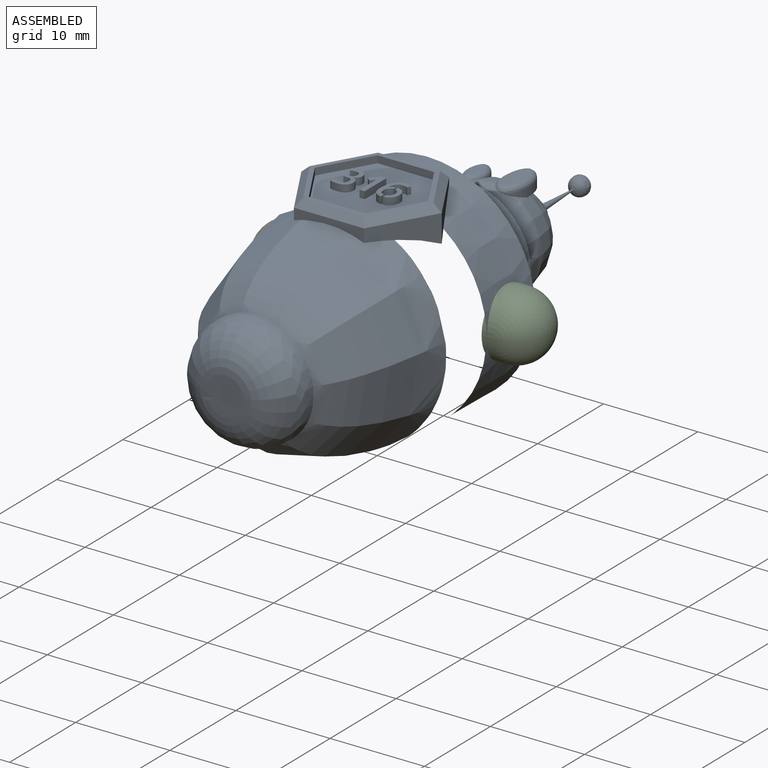
[diagram: assembled view]
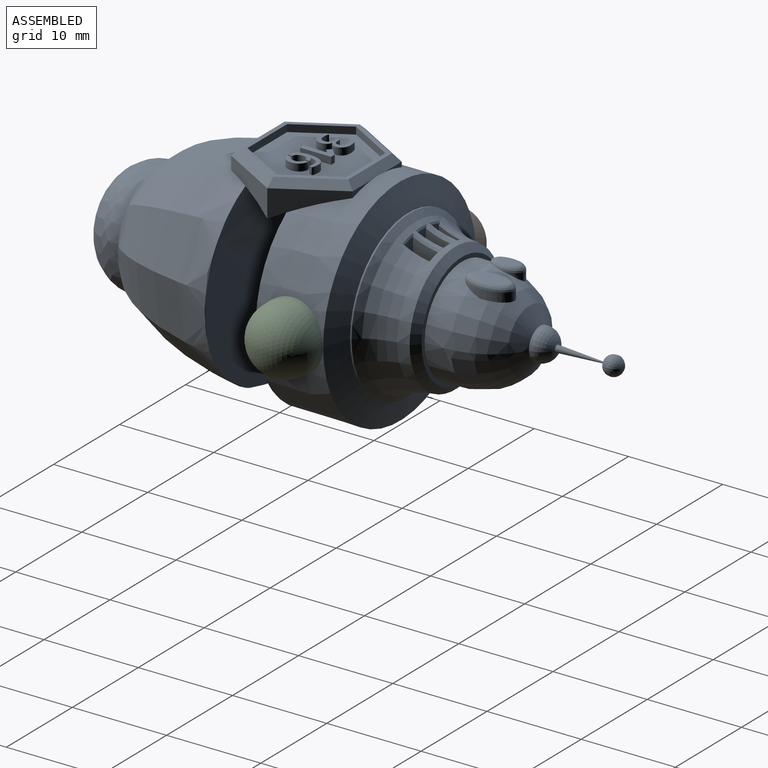
[diagram: assembled view, second angle]
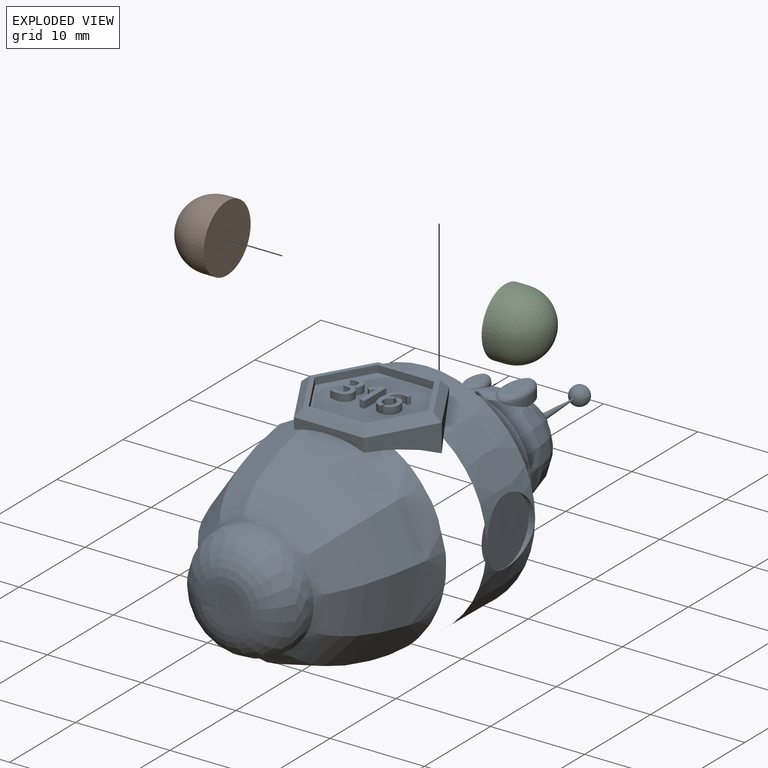
[diagram: exploded view]
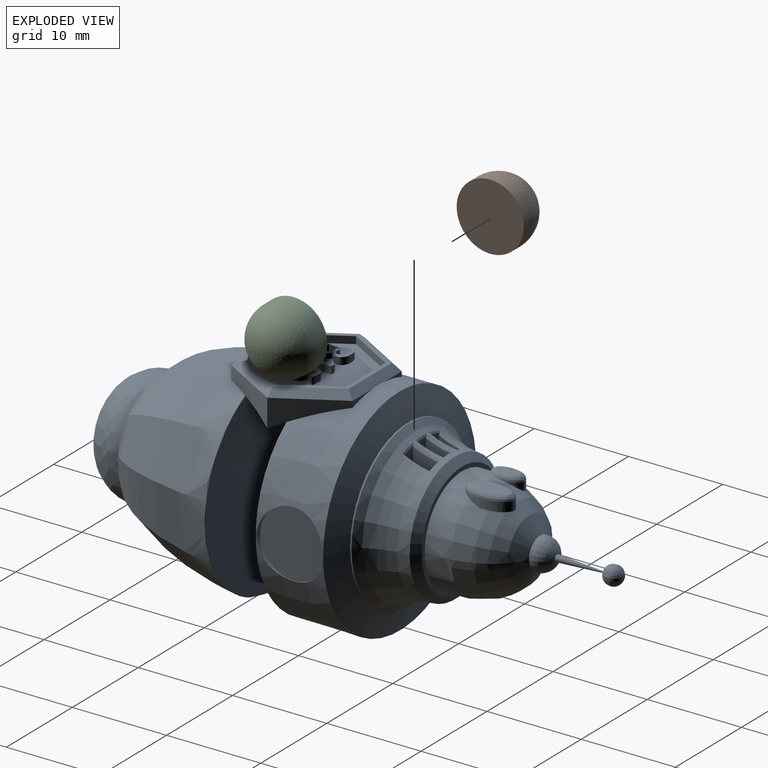
[diagram: exploded view, second angle]
ASSEMBLY  parts=3 mates=2
PART A: 176 faces, bbox 23.7x54.9x24.4 mm
  f0: plane 2.65x0.53mm, normal (0,1,0), area 0.6mm2, adj f10,f42,f53
  f1: plane 13.13x11.37mm, normal (0,0,1), area 18mm2, adj f45,f46,f47,f48,f49,f50,f52,f53
  f2: revolved ~11.28x11.28mm, area 267.2mm2, adj f5,f6,f14,f16,f17,f19,f21,f23
  f3: revolved ~2x2mm, area 12.6mm2, adj f4
  f4: cone r=0.36mm half-angle=3.2deg, axis (-0.01,-1,0), area 7mm2, adj f3,f5
  f5: revolved ~3.42x3.42mm, area 19.7mm2, adj f2,f4
  f6: cone r=6.82mm half-angle=89.6deg, axis (-0.01,-1,0), area 16.1mm2, adj f2,f175
  f7: revolved ~17.54x17.54mm, area 236mm2, adj f8,f159,f160,f161,f162,f163,f164,f165
  f8: cone r=8.77mm half-angle=0.4deg, axis (0.01,1,0), area 9.3mm2, adj f7,f9
  f9: cone r=11.48mm half-angle=71deg, axis (-0.01,-1,0), area 182.4mm2, adj f8,f10
  f10: cone r=11.43mm half-angle=0.4deg, axis (0.01,1,0), area 386.5mm2, adj f0,f9,f11,f12,f42,f43,f44,f53
  f11: revolved ~22.77x22.77mm, area 2259.7mm2, adj f10,f12,f13,f39,f40,f41,f43
  f12: revolved ~1.54x0.88mm, area 0.8mm2, adj f10,f11,f42
  f13: revolved ~12.29x12.29mm, area 219.2mm2, adj f11
  f14: extruded ~3.56x2.07mm, area 4mm2, adj f2,f16,f22
  f15: plane 2.46x0.97mm, normal (0,0,1), area 1.8mm2, adj f22,f23
  f16: plane 1.28x1.02mm, normal (0,0,-1), area 0.1mm2, adj f2,f14
  f17: extruded ~5.02x2.68mm, area 6.9mm2, adj f2,f19,f20
  f18: plane 3.96x1.59mm, normal (0,0,1), area 4.8mm2, adj f20,f21
  f19: plane 3.49x3.02mm, normal (0,0,-1), area 2.4mm2, adj f2,f17
  f20: bspline ~5.01x2.69mm, area 7.4mm2, adj f17,f18,f21
  f21: bspline ~2.37x1.81mm, area 1.8mm2, adj f2,f18,f20
  f22: bspline ~3.57x2.08mm, area 4.9mm2, adj f14,f15,f23
  f23: bspline ~2.21x1.17mm, area 1.5mm2, adj f2,f15,f22
  f24: plane 2.94x2.66mm, normal (1,0,0), area 6.4mm2, adj f25,f27,f28,f159,f160
  f25: plane 3.02x1.36mm, normal (0,1,0), area 3.3mm2, adj f24,f26,f28,f160,f161,f162
  f26: plane 2.59x2.5mm, normal (-1,0,0), area 5.2mm2, adj f25,f27,f28,f161
  f27: plane 2.11x1.19mm, normal (0,-1,0), area 2.2mm2, adj f24,f26,f28,f159,f161
  f28: plane 2.59x1.13mm, normal (0,0,1), area 2.9mm2, adj f24,f25,f26,f27
  f29: plane 3.12x2.69mm, normal (1,0,0), area 6.6mm2, adj f30,f32,f33,f163
  f30: plane 3.16x1.37mm, normal (0,1,0), area 3.6mm2, adj f29,f31,f33,f163,f165,f166
  f31: plane 3.11x2.7mm, normal (-1,0,0), area 6.6mm2, adj f30,f32,f33,f166
  f32: plane 2.28x1.14mm, normal (0,-1,0), area 2.6mm2, adj f29,f31,f33,f164
  f33: plane 2.59x1.13mm, normal (0,0,1), area 2.9mm2, adj f29,f30,f31,f32
  f34: plane 2.59x2.56mm, normal (1,0,0), area 5.4mm2, adj f35,f37,f38,f170
  f35: plane 3.06x1.37mm, normal (0,1,0), area 3.3mm2, adj f34,f36,f38,f167,f169,f170
  f36: plane 2.97x2.65mm, normal (-1,0,0), area 6.5mm2, adj f35,f37,f38,f167,f168
  f37: plane 2.13x1.19mm, normal (0,-1,0), area 2.2mm2, adj f34,f36,f38,f168,f170
  f38: plane 2.59x1.13mm, normal (0,0,1), area 2.9mm2, adj f34,f35,f36,f37
  f39: plane 6.8x4.07mm, normal (-0.87,-0.5,0), area 12.3mm2, adj f11,f40,f42,f54
  f40: plane 7.47x1.42mm, normal (0,-1,0), area 6.4mm2, adj f11,f39,f41,f56
  f41: plane 6.79x4.07mm, normal (0.87,-0.5,0), area 14.4mm2, adj f11,f40,f43,f57
  f42: plane 6.62x3.89mm, normal (-0.87,0.5,0), area 10.4mm2, adj f0,f10,f12,f39,f52
  f43: plane 6.65x3.92mm, normal (0.87,0.5,0), area 12.2mm2, adj f10,f11,f41,f44,f55
  f44: plane 3.01x0.65mm, normal (0,1,0), area 0.8mm2, adj f10,f43,f53
  f45: plane 5.21x3.01mm, normal (0.87,-0.5,0), area 4.6mm2, adj f1,f46,f50,f51
  f46: plane 5.21x3.01mm, normal (0.87,0.5,0), area 4.6mm2, adj f1,f45,f47,f51
  f47: plane 6.02x0.76mm, normal (0,1,0), area 4.6mm2, adj f1,f46,f48,f51
  f48: plane 5.21x3.01mm, normal (-0.87,0.5,0), area 4.6mm2, adj f1,f47,f49,f51
  f49: plane 5.21x3.01mm, normal (-0.87,-0.5,0), area 4.6mm2, adj f1,f48,f50,f51
  f50: plane 6.02x0.76mm, normal (0,-1,0), area 4.6mm2, adj f1,f45,f49,f51
  f51: plane 12.04x10.42mm, normal (0,0,1), area 85.6mm2, adj f45,f46,f47,f48,f49,f50,f58,f59
  f52: plane 6.45x4.16mm, normal (-0.61,0.35,0.71), area 7.6mm2, adj f1,f42,f53,f54
  f53: plane 7.51x0.83mm, normal (0,0.71,0.71), area 7.5mm2, adj f0,f1,f10,f44,f52,f55
  f54: plane 6.45x4.16mm, normal (-0.61,-0.35,0.71), area 7.6mm2, adj f1,f39,f52,f56
  f55: plane 6.45x4.16mm, normal (0.61,0.35,0.71), area 7.6mm2, adj f1,f43,f53,f57
  f56: plane 7.45x0.76mm, normal (0,-0.71,0.71), area 7.6mm2, adj f1,f40,f54,f57
  f57: plane 6.45x4.16mm, normal (0.61,-0.35,0.71), area 7.6mm2, adj f1,f41,f55,f56
  f58: plane 0.76x0.36mm, normal (-1,-0.01,0), area 0.3mm2, adj f51,f59,f102,f103
  f59: plane 0.76x0.45mm, normal (0,-1,0), area 0.3mm2, adj f51,f58,f60,f103
  f60: extruded ~0.76x0.41mm, area 0.3mm2, adj f51,f59,f61,f103
  f61: extruded ~0.76x0.41mm, area 0.3mm2, adj f51,f60,f62,f103
  f62: extruded ~0.76x0.42mm, area 0.3mm2, adj f51,f61,f63,f103
  f63: extruded ~0.76x0.46mm, area 0.4mm2, adj f51,f62,f64,f103
  f64: extruded ~0.76x0.33mm, area 0.3mm2, adj f51,f63,f65,f103
  f65: extruded ~0.76x0.19mm, area 0.1mm2, adj f51,f64,f66,f103
  f66: extruded ~0.76x0.1mm, area 0.1mm2, adj f51,f65,f67,f103
  f67: extruded ~0.76x0.08mm, area 0.1mm2, adj f51,f66,f68,f103
  f68: plane 0.76x0.38mm, normal (-0.95,0.3,0), area 0.3mm2, adj f51,f67,f69,f103
  f69: extruded ~0.76x0.3mm, area 0.2mm2, adj f51,f68,f70,f103
  f70: extruded ~0.76x0.59mm, area 0.5mm2, adj f51,f69,f71,f103
  f71: extruded ~0.76x0.15mm, area 0.1mm2, adj f51,f70,f72,f103
  f72: extruded ~0.76x0.21mm, area 0.2mm2, adj f51,f71,f73,f103
  f73: extruded ~0.76x0.24mm, area 0.2mm2, adj f51,f72,f74,f103
  f74: extruded ~0.76x0.22mm, area 0.2mm2, adj f51,f73,f75,f103
  f75: extruded ~0.76x0.27mm, area 0.2mm2, adj f51,f74,f76,f103
  f76: extruded ~0.76x0.38mm, area 0.3mm2, adj f51,f75,f77,f103
  f77: extruded ~0.76x0.32mm, area 0.3mm2, adj f51,f76,f78,f103
  f78: extruded ~0.76x0.24mm, area 0.2mm2, adj f51,f77,f79,f103
  f79: extruded ~0.76x0.2mm, area 0.2mm2, adj f51,f78,f80,f103
  f80: extruded ~0.76x0.21mm, area 0.2mm2, adj f51,f79,f81,f103
  f81: extruded ~0.76x0.17mm, area 0.1mm2, adj f51,f80,f82,f103
  f82: extruded ~0.76x0.17mm, area 0.2mm2, adj f51,f81,f83,f103
  f83: extruded ~0.76x0.2mm, area 0.2mm2, adj f51,f82,f84,f103
  f84: extruded ~0.76x0.25mm, area 0.2mm2, adj f51,f83,f85,f103
  f85: extruded ~0.76x0.41mm, area 0.3mm2, adj f51,f84,f86,f103
  f86: extruded ~0.76x0.29mm, area 0.3mm2, adj f51,f85,f87,f103
  f87: extruded ~0.76x0.33mm, area 0.3mm2, adj f51,f86,f88,f103
  f88: extruded ~0.76x0.4mm, area 0.3mm2, adj f51,f87,f89,f103
  f89: extruded ~0.76x0.46mm, area 0.3mm2, adj f51,f88,f90,f103
  f90: extruded ~0.76x0.26mm, area 0.2mm2, adj f51,f89,f91,f103
  f91: plane 0.76x0.4mm, normal (-0.93,-0.36,0), area 0.3mm2, adj f51,f90,f92,f103
  f92: extruded ~0.76x0.19mm, area 0.1mm2, adj f51,f91,f93,f103
  f93: extruded ~0.76x0.33mm, area 0.3mm2, adj f51,f92,f94,f103
  f94: extruded ~0.76x0.32mm, area 0.2mm2, adj f51,f93,f95,f103
  f95: extruded ~0.76x0.18mm, area 0.2mm2, adj f51,f94,f96,f103
  f96: extruded ~0.76x0.16mm, area 0.1mm2, adj f51,f95,f97,f103
  f97: extruded ~0.76x0.17mm, area 0.1mm2, adj f51,f96,f98,f103
  f98: extruded ~0.76x0.31mm, area 0.2mm2, adj f51,f97,f99,f103
  f99: extruded ~0.76x0.15mm, area 0.2mm2, adj f51,f98,f100,f103
  f100: extruded ~0.76x0.19mm, area 0.1mm2, adj f51,f99,f101,f103
  f101: extruded ~0.76x0.2mm, area 0.2mm2, adj f51,f100,f102,f103
  f102: plane 0.76x0.3mm, normal (0,1,0), area 0.2mm2, adj f51,f58,f101,f103
  f103: plane 3.32x1.94mm, normal (0,0,1), area 2.7mm2, adj f58,f59,f60,f61,f62,f63,f64,f65
  f104: plane 3.28x0.76mm, normal (1,0,0), area 2.5mm2, adj f51,f105,f110,f111
  f105: plane 0.76x0.54mm, normal (0,1,0), area 0.4mm2, adj f51,f104,f106,f111
  f106: plane 0.83x0.83mm, normal (-0.71,0.71,0), area 0.9mm2, adj f51,f105,f107,f111
  f107: plane 0.76x0.38mm, normal (-0.71,-0.71,0), area 0.4mm2, adj f51,f106,f108,f111
  f108: plane 0.76x0.45mm, normal (0.71,-0.71,0), area 0.5mm2, adj f51,f107,f109,f111
  f109: plane 2.52x0.76mm, normal (-1,0,0), area 1.9mm2, adj f51,f108,f110,f111
  f110: plane 0.76x0.54mm, normal (0,-1,0), area 0.4mm2, adj f51,f104,f109,f111
  f111: plane 3.28x1.38mm, normal (0,0,1), area 2.3mm2, adj f104,f105,f106,f107,f108,f109,f110
  f112: extruded ~0.76x0.35mm, area 0.3mm2, adj f51,f113,f142,f143
  f113: extruded ~0.76x0.28mm, area 0.2mm2, adj f51,f112,f114,f143
  f114: plane 0.76x0.37mm, normal (0.91,-0.42,0), area 0.3mm2, adj f51,f113,f115,f143
  f115: extruded ~0.76x0.38mm, area 0.3mm2, adj f51,f114,f116,f143
  f116: extruded ~0.76x0.47mm, area 0.4mm2, adj f51,f115,f117,f143
  f117: extruded ~0.76x0.42mm, area 0.3mm2, adj f51,f116,f118,f143
  f118: extruded ~0.76x0.38mm, area 0.4mm2, adj f51,f117,f119,f143
  f119: extruded ~0.76x0.62mm, area 0.5mm2, adj f51,f118,f120,f143
  f120: extruded ~0.98x0.76mm, area 0.8mm2, adj f51,f119,f121,f143
  f121: extruded ~0.76x0.52mm, area 0.4mm2, adj f51,f120,f122,f143
  f122: extruded ~0.76x0.41mm, area 0.4mm2, adj f51,f121,f123,f143
  f123: extruded ~0.76x0.34mm, area 0.3mm2, adj f51,f122,f124,f143
  f124: extruded ~0.76x0.47mm, area 0.4mm2, adj f51,f123,f125,f143
  f125: plane 0.76x0.44mm, normal (1,0,0), area 0.3mm2, adj f51,f124,f126,f143
  f126: extruded ~0.76x0.23mm, area 0.2mm2, adj f51,f125,f127,f143
  f127: extruded ~0.76x0.18mm, area 0.2mm2, adj f51,f126,f128,f143
  f128: extruded ~0.76x0.22mm, area 0.2mm2, adj f51,f127,f129,f143
  f129: extruded ~0.76x0.27mm, area 0.2mm2, adj f51,f128,f130,f143
  f130: extruded ~0.76x0.27mm, area 0.2mm2, adj f51,f129,f131,f143
  f131: extruded ~0.76x0.21mm, area 0.2mm2, adj f51,f130,f132,f143
  f132: extruded ~0.76x0.18mm, area 0.2mm2, adj f51,f131,f133,f143
  f133: extruded ~0.76x0.23mm, area 0.2mm2, adj f51,f132,f134,f143
  f134: plane 0.76x0.39mm, normal (1,0,0), area 0.3mm2, adj f51,f133,f135,f143
  f135: extruded ~0.76x0.33mm, area 0.3mm2, adj f51,f134,f136,f143
  f136: extruded ~0.76x0.19mm, area 0.2mm2, adj f51,f135,f137,f143
  f137: extruded ~0.76x0.02mm, area 0mm2, adj f51,f136,f138,f143
  f138: extruded ~0.76x0.02mm, area 0mm2, adj f51,f137,f139,f143
  f139: extruded ~0.76x0.36mm, area 0.3mm2, adj f51,f138,f140,f143
  f140: extruded ~0.76x0.31mm, area 0.3mm2, adj f51,f139,f141,f143
  f141: extruded ~0.76x0.22mm, area 0.2mm2, adj f51,f140,f142,f143
  f142: extruded ~0.76x0.32mm, area 0.3mm2, adj f51,f112,f141,f143
  f143: plane 3.33x2.04mm, normal (0,0,1), area 2.3mm2, adj f112,f113,f114,f115,f116,f117,f118,f119
  f144: plane 0.76x0.41mm, normal (-1,0,0), area 0.3mm2, adj f51,f145,f157,f158
  f145: extruded ~0.76x0.37mm, area 0.3mm2, adj f51,f144,f146,f158
  f146: extruded ~0.76x0.46mm, area 0.4mm2, adj f51,f145,f147,f158
  f147: extruded ~0.76x0.47mm, area 0.4mm2, adj f51,f146,f148,f158
  f148: extruded ~0.76x0.37mm, area 0.3mm2, adj f51,f147,f149,f158
  f149: plane 0.76x0.44mm, normal (-1,0,0), area 0.3mm2, adj f51,f148,f150,f158
  f150: extruded ~0.76x0.33mm, area 0.3mm2, adj f51,f149,f151,f158
  f151: extruded ~0.76x0.32mm, area 0.3mm2, adj f51,f150,f152,f158
  f152: extruded ~0.76x0.36mm, area 0.3mm2, adj f51,f151,f153,f158
  f153: extruded ~0.76x0.54mm, area 0.4mm2, adj f51,f152,f154,f158
  f154: extruded ~0.76x0.37mm, area 0.3mm2, adj f51,f153,f155,f158
  f155: extruded ~0.76x0.33mm, area 0.3mm2, adj f51,f154,f156,f158
  f156: extruded ~0.76x0.31mm, area 0.3mm2, adj f51,f155,f157,f158
  f157: extruded ~0.76x0.41mm, area 0.3mm2, adj f51,f144,f156,f158
  f158: plane 2.24x0.98mm, normal (0,0,1), area 1.2mm2, adj f144,f145,f146,f147,f148,f149,f150,f151
  f159: bspline ~1.66x0.71mm, area 0.5mm2, adj f7,f24,f27,f160,f161
  f160: bspline ~3.05x1.09mm, area 0.8mm2, adj f7,f24,f25,f159,f162
  f161: bspline ~3.05x1.13mm, area 1mm2, adj f7,f25,f26,f27,f159,f162
  f162: bspline ~1.64x0.63mm, area 0.3mm2, adj f7,f25,f160,f161
  f163: bspline ~3.34x1.19mm, area 0.9mm2, adj f7,f29,f30,f164,f165
  f164: bspline ~1.78x0.3mm, area 0.4mm2, adj f7,f32,f163,f166
  f165: bspline ~1.61x0.24mm, area 0.3mm2, adj f7,f30,f163,f166
  f166: bspline ~3.05x1.09mm, area 0.9mm2, adj f7,f30,f31,f164,f165
  f167: bspline ~3.34x1.2mm, area 0.8mm2, adj f7,f35,f36,f168,f169
  f168: bspline ~1.81x0.73mm, area 0.5mm2, adj f7,f36,f37,f167,f170
  f169: bspline ~1.63x0.59mm, area 0.3mm2, adj f7,f35,f167,f170
  f170: bspline ~3.34x1.26mm, area 1mm2, adj f7,f34,f35,f37,f168,f169
  f171: cylinder r=3.56mm len=7.11mm, axis (1,0,0), area 7.7mm2, adj f10,f172
  f172: plane 7.11x7.11mm, normal (1,0,0), area 39.7mm2, adj f171
  f173: cylinder r=3.56mm len=7.11mm, axis (1,0,0), area 9.3mm2, adj f10,f174
  f174: plane 7.11x7.11mm, normal (-1,0,0), area 39.7mm2, adj f173
  f175: cone r=6.85mm half-angle=47deg, axis (-0.01,-1,0), area 43.5mm2, adj f6,f7
PART B: 3 faces, bbox 7.1x7.1x4.8 mm
  f0: cylinder r=3.56mm len=7.12mm, axis (0,0,-1), area 28.4mm2, adj f1,f2
  f1: plane 7.12x7.12mm, normal (0,0,1), area 39.9mm2, adj f0
  f2: sphere r=3.56mm, area 79.5mm2, adj f0
PART C: same geometry as B
PLACE A t=(-8.51,-14.31,9.44)mm fixed
PLACE B rot(axis=(-0.71,0,-0.71),180deg) t=(-19.56,1.82,9.44)mm
PLACE C rot(axis=(0,-1,0),90deg) t=(4.57,1.93,9.44)mm
MATE fastened C.f0 <-> A.f171  axis (-1,0,0) through (3.3,1.8,9.44)mm
MATE fastened B.f0 <-> A.f173  axis (1,0,0) through (-18.29,1.94,9.44)mm
